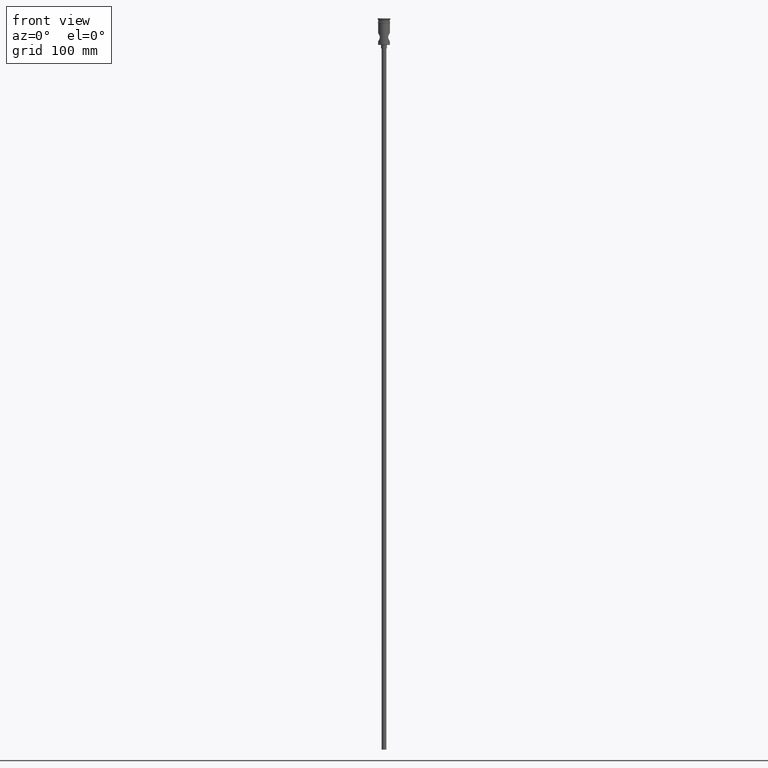
[diagram: clean part render]
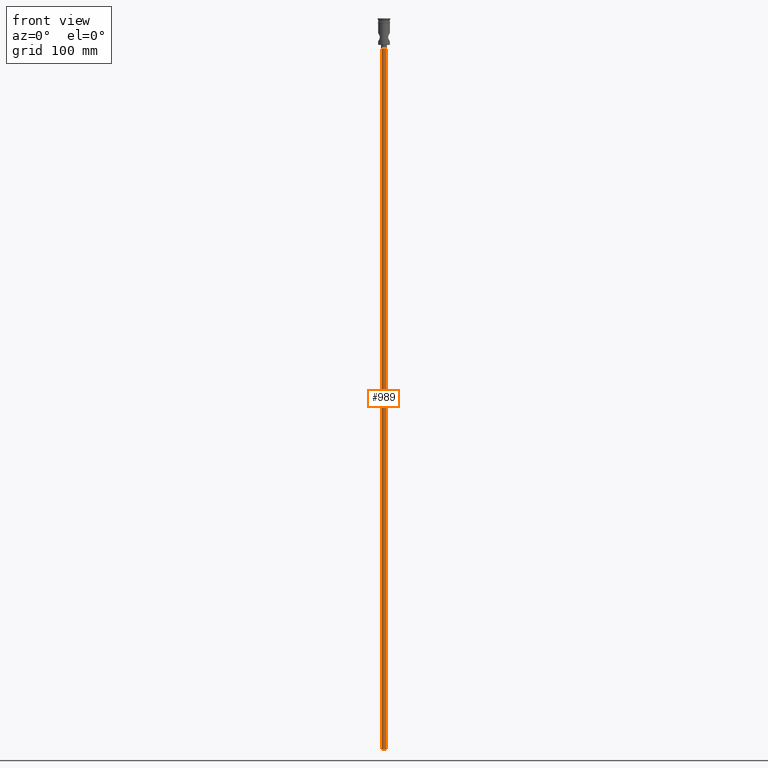
[diagram: same view with one face highlighted and labeled with its STEP entity id]
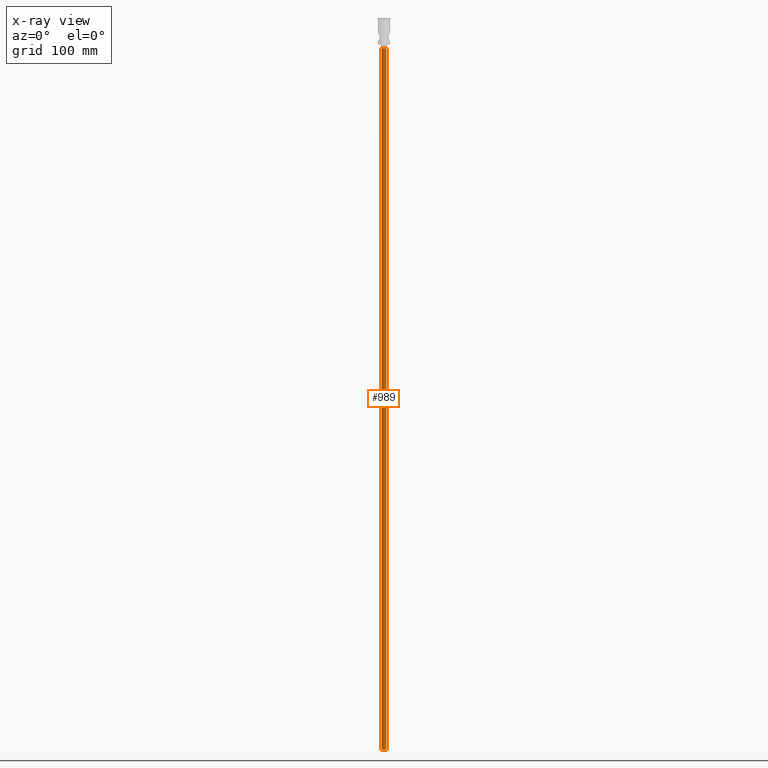
[diagram: x-ray of the same camera — body ghosted, the highlighted face saturated]
A machine part, front view. The second image highlights one B-rep face of the part: STEP entity #989.
The next image is the same camera in x-ray: the body ghosted, the highlighted face saturated — about 0% of this face is hidden behind the body in this view.
In plain terms, the highlighted cylindrical surface (edge-blend (fillet) strip) has radius 2 mm, axis along (-0, -0, 1).
Its self-contained STEP definition (entity closure, byte-faithful):
#58 = CARTESIAN_POINT ( 'NONE',  ( 2.000000000000000000, 0.000000000000000000, -25.50000000000000000 ) ) ;
#64 = AXIS2_PLACEMENT_3D ( 'NONE', #926, #1375, #573 ) ;
#100 = EDGE_CURVE ( 'NONE', #379, #491, #1415, .T. ) ;
#102 = DIRECTION ( 'NONE',  ( 0.000000000000000000, 0.000000000000000000, -1.000000000000000000 ) ) ;
#141 = VERTEX_POINT ( 'NONE', #198 ) ;
#179 = VECTOR ( 'NONE', #292, 1000.000000000000000 ) ;
#198 = CARTESIAN_POINT ( 'NONE',  ( -2.000000000000000000, 2.449293598294706414E-16, -622.4999999999998863 ) ) ;
#257 = ORIENTED_EDGE ( 'NONE', *, *, #100, .T. ) ;
#259 = DIRECTION ( 'NONE',  ( -1.000000000000000000, 0.000000000000000000, 0.000000000000000000 ) ) ;
#274 = EDGE_CURVE ( 'NONE', #379, #141, #973, .T. ) ;
#277 = CARTESIAN_POINT ( 'NONE',  ( -2.000000000000000000, 2.449293598294706414E-16, -25.50000000000000000 ) ) ;
#284 = ORIENTED_EDGE ( 'NONE', *, *, #1007, .F. ) ;
#292 = DIRECTION ( 'NONE',  ( -0.000000000000000000, -0.000000000000000000, 1.000000000000000000 ) ) ;
#379 = VERTEX_POINT ( 'NONE', #941 ) ;
#404 = VERTEX_POINT ( 'NONE', #277 ) ;
#416 = AXIS2_PLACEMENT_3D ( 'NONE', #1217, #102, #884 ) ;
#487 = CARTESIAN_POINT ( 'NONE',  ( 0.000000000000000000, 0.000000000000000000, -622.4999999999998863 ) ) ;
#491 = VERTEX_POINT ( 'NONE', #58 ) ;
#573 = DIRECTION ( 'NONE',  ( 1.000000000000000000, 0.000000000000000000, 0.000000000000000000 ) ) ;
#576 = LINE ( 'NONE', #1309, #791 ) ;
#610 = DIRECTION ( 'NONE',  ( -0.000000000000000000, -0.000000000000000000, 1.000000000000000000 ) ) ;
#675 = ORIENTED_EDGE ( 'NONE', *, *, #274, .F. ) ;
#791 = VECTOR ( 'NONE', #610, 1000.000000000000000 ) ;
#823 = DIRECTION ( 'NONE',  ( 0.000000000000000000, 0.000000000000000000, -1.000000000000000000 ) ) ;
#865 = EDGE_CURVE ( 'NONE', #491, #404, #1039, .T. ) ;
#873 = ORIENTED_EDGE ( 'NONE', *, *, #865, .T. ) ;
#884 = DIRECTION ( 'NONE',  ( -1.000000000000000000, 0.000000000000000000, 0.000000000000000000 ) ) ;
#918 = CYLINDRICAL_SURFACE ( 'NONE', #64, 2.000000000000000000 ) ;
#926 = CARTESIAN_POINT ( 'NONE',  ( 0.000000000000000000, 0.000000000000000000, -622.4999999999998863 ) ) ;
#941 = CARTESIAN_POINT ( 'NONE',  ( 2.000000000000000000, 0.000000000000000000, -622.4999999999998863 ) ) ;
#973 = CIRCLE ( 'NONE', #1181, 2.000000000000000000 ) ;
#989 = ADVANCED_FACE ( 'NONE', ( #1438 ), #918, .T. ) ;
#1007 = EDGE_CURVE ( 'NONE', #141, #404, #576, .T. ) ;
#1039 = CIRCLE ( 'NONE', #416, 2.000000000000000000 ) ;
#1151 = EDGE_LOOP ( 'NONE', ( #284, #675, #257, #873 ) ) ;
#1181 = AXIS2_PLACEMENT_3D ( 'NONE', #487, #823, #259 ) ;
#1217 = CARTESIAN_POINT ( 'NONE',  ( 0.000000000000000000, 0.000000000000000000, -25.50000000000000000 ) ) ;
#1299 = CARTESIAN_POINT ( 'NONE',  ( 2.000000000000000000, 0.000000000000000000, -622.4999999999998863 ) ) ;
#1309 = CARTESIAN_POINT ( 'NONE',  ( -2.000000000000000000, 2.449293598294706414E-16, -622.4999999999998863 ) ) ;
#1375 = DIRECTION ( 'NONE',  ( -0.000000000000000000, -0.000000000000000000, 1.000000000000000000 ) ) ;
#1415 = LINE ( 'NONE', #1299, #179 ) ;
#1438 = FACE_OUTER_BOUND ( 'NONE', #1151, .T. ) ;